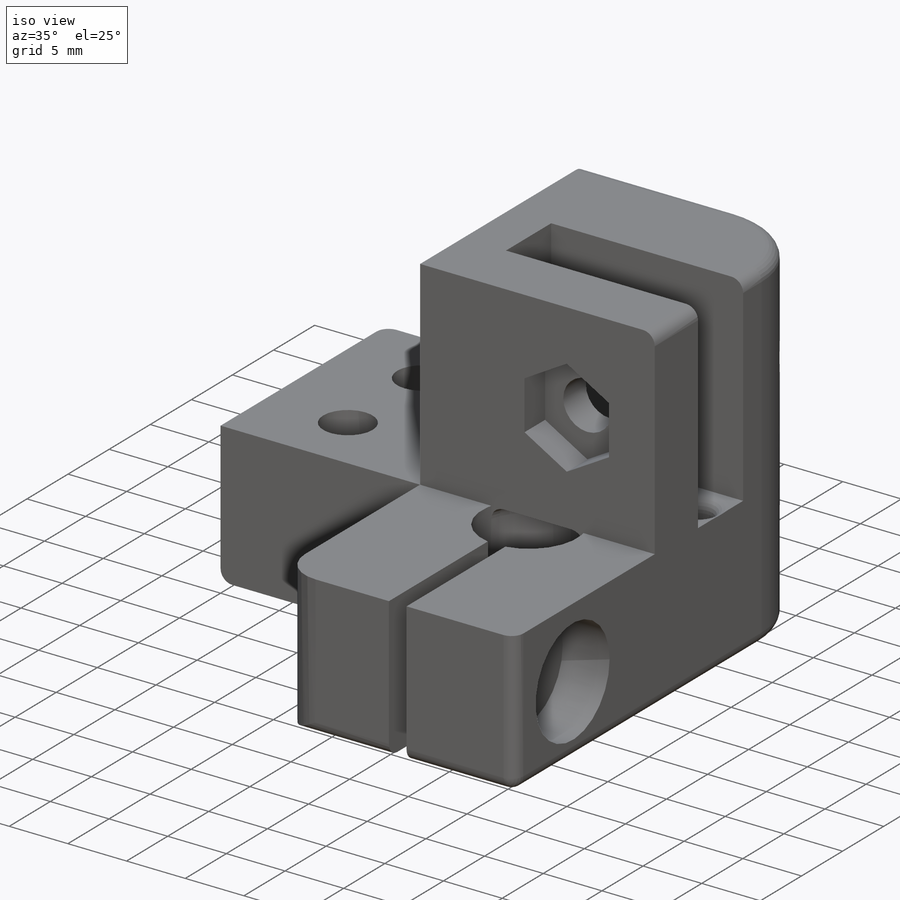
[diagram: iso view]
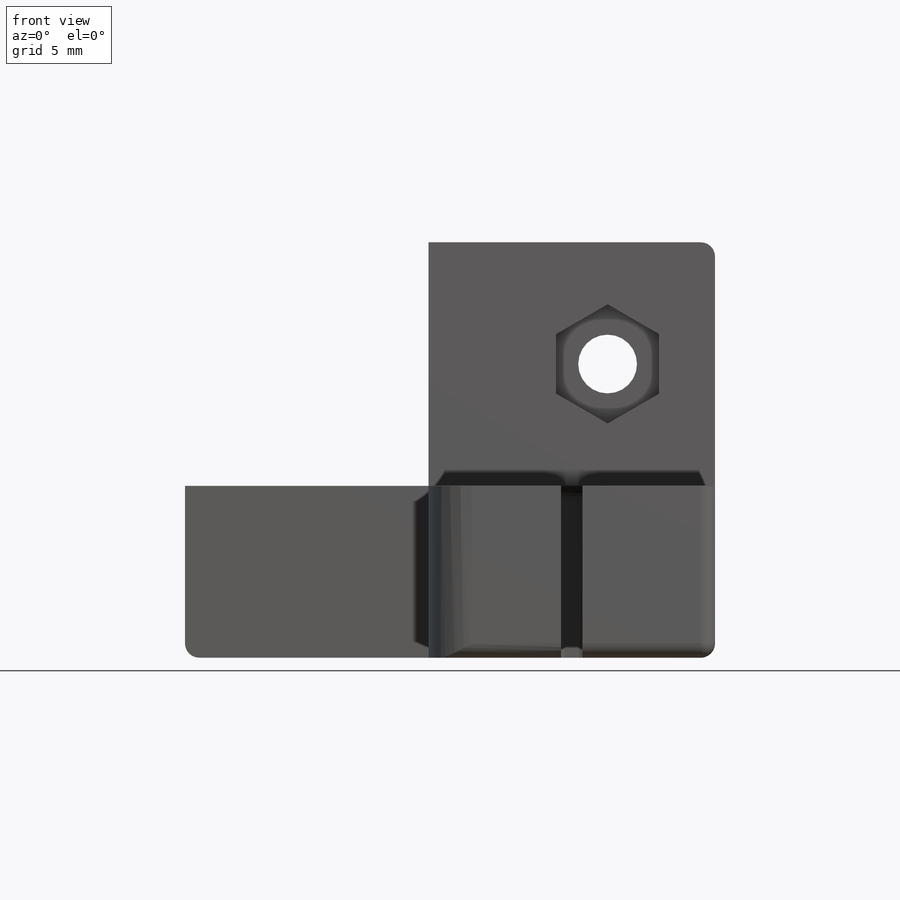
[diagram: front view]
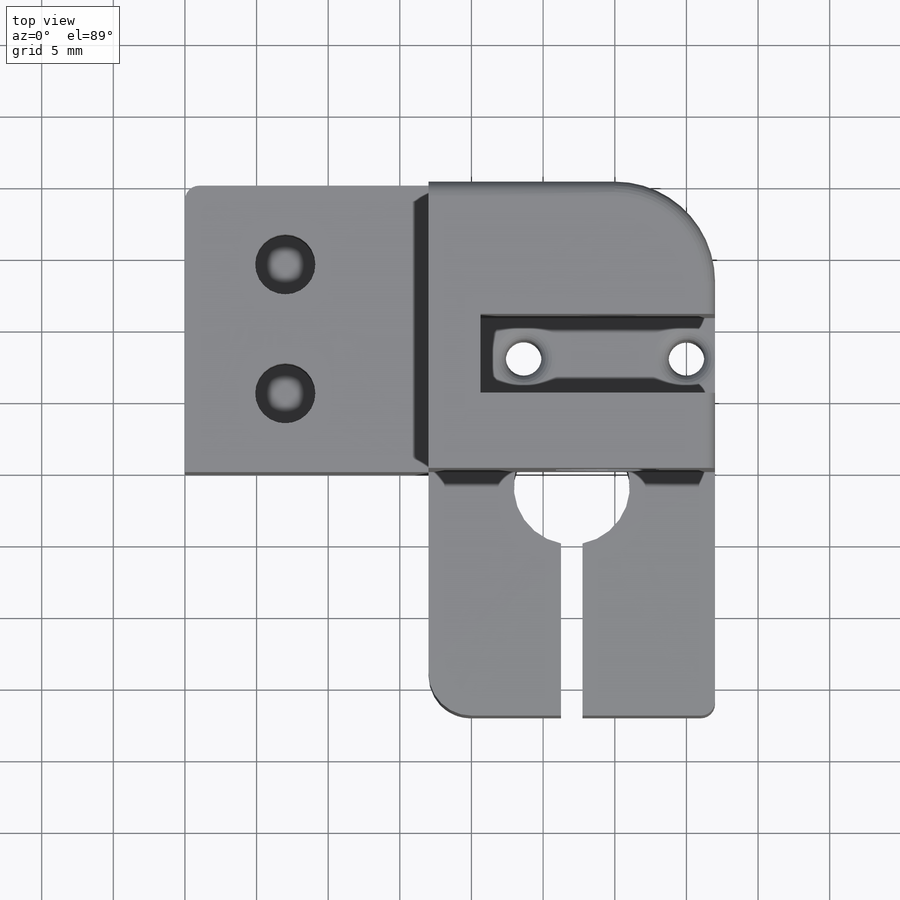
[diagram: top view]
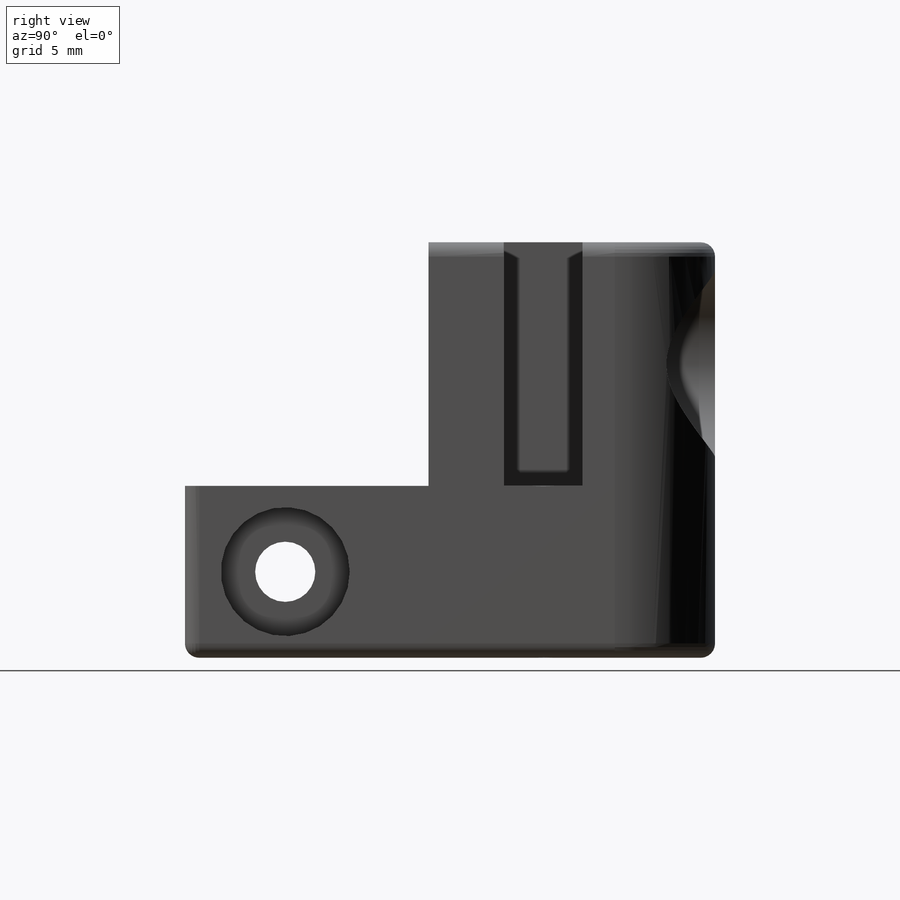
[diagram: right view]
SOLIDWORKS PART (.sldprt)
format: sldprt  version: not decoded by parser v0  size: 817,152 bytes
history: native  units: mm
features: sketch x26, cut_extrude x17, fillet x13, extrude x8, chamfer x3, material x1 (+11 scaffold rows collapsed)
feature tree (79):
  scaffold x11  (default folders/planes/origin — collapsed)
  material  "Material <not specified>"
  sketch  "Sketch1"  dims[D1=37.0mm D2=29.0mm]
  extrude  "Boss-Extrude1"  Depth=37mm
  sketch  "Sketch2"  dims[c1.D1=20.0mm c1.D2=20.0mm c2.D1=17.0mm c2.D2=17.0mm]
  cut_extrude  "Cut-Extrude2"  Depth=17mm
  sketch  "Sketch3"  dims[D1=17.0mm D2=17.0mm]
  cut_extrude  "Cut-Extrude3"  [1 undecoded]
  sketch  "Sketch4"  dims[c1.D1=8.1mm c1.D7=2.5mm c1.D8=2.5mm c1.D11=4.2mm c1.D2=10.0mm c1.D3=1.5mm c1.D4=0.75mm c1.D5=8.0mm c1.D6=9.0mm c1.D9=2.0mm c1.D10=11.36mm c1.D12=10.0mm c1.D13=5.5mm c1.D14=5.0mm c1.D15=10.0mm c2.D14=9.0mm c2.D15=6.0mm]
  cut_extrude  "Cut-Extrude4"  Depth=12mm
  sketch  "Sketch5"  dims[D1=5.5mm D2=5.25mm D3=3.0mm]
  cut_extrude  "Cut-Extrude5"  Depth=17mm
  sketch  "Sketch7"  dims[D1=4.1mm D2=7.5mm D3=8.5mm]
  cut_extrude  "Cut-Extrude6"  [1 undecoded]
  sketch  "Sketch8"  dims[c1.D1=~9.102495mm c1.D2=~5.255328mm c2.D1=7.2mm]
  cut_extrude  "Cut-Extrude7"  Depth=2.5mm
  sketch  "Sketch9"  dims[D3=9.0mm D1=10.0mm D2=6.0mm]
  cut_extrude  "Cut-Extrude8"  Depth=4mm
  sketch  "Sketch13"  dims[D1=9.0mm D2=9.0mm]
  cut_extrude  "Cut-Extrude10"  Depth=5mm
  sketch  "Sketch14"
  extrude  "Boss-Extrude3"  Depth=0.2mm
  sketch  "Sketch19"  dims[D1=13.0mm]
  cut_extrude  "Cut-Extrude15"  Depth=4mm
  sketch  "Sketch20"  dims[D1=6.8mm D2=6.6mm]
  extrude  "Boss-Extrude4"  Depth=0.8mm
  sketch  "Sketch21"  dims[D1=6.8mm]
  extrude  "Boss-Extrude5"  Depth=0.8mm
  sketch  "Sketch22"  dims[D1=6.8mm D2=6.6mm]
  extrude  "Boss-Extrude6"  Depth=0.8mm
  fillet  "Fillet15"  Radius=1mm
  fillet  "Fillet18"  Radius=1mm
  sketch  "Sketch23"
  cut_extrude  "Cut-Extrude16"  [1 undecoded]
  sketch  "Sketch25"  dims[D1=6.8mm D2=6.6mm]
  extrude  "Boss-Extrude7"  Depth=0.8mm
  sketch  "Sketch26"  dims[D1=6.8mm]
  extrude  "Boss-Extrude8"  Depth=0.8mm
  sketch  "Sketch27"  dims[D1=6.8mm]
  extrude  "Boss-Extrude9"  Depth=0.8mm
  chamfer  "Chamfer1"  Distance=0.8mm Angle=45deg
  fillet  "Fillet21"  Radius=1mm
  fillet  "Fillet24"  Radius=1mm
  fillet  "Fillet26"  Radius=7mm
  sketch  "Sketch29"  dims[D1=4.2mm]
  cut_extrude  "Cut-Extrude19"  [1 undecoded]
  fillet  "Fillet43"  Radius=3mm
  sketch  "Sketch35"  dims[D1=2.1mm D2=5.0mm D3=10.0mm D4=6.5mm]
  cut_extrude  "Cut-Extrude23"  Depth=16mm
  sketch  "Sketch36"  dims[c1.D1=4.1mm c1.D2=4.1mm c1.D3=2.0mm c1.D4=6.5mm c1.D5=7.95mm c1.D6=8.5mm c2.D5=7.95mm]
  cut_extrude  "Cut-Extrude24"  Depth=8mm
  chamfer  "Chamfer2"  Distance=1.7mm Angle=45deg
  sketch  "Sketch37"  dims[c1.D1=13.0mm c1.D2=6.75mm c1.D3=~7.407585mm c1.D4=13.0mm c2.D3=10.0mm]
  cut_extrude  "Cut-Extrude25"  Depth=7.5mm
  chamfer  "Chamfer3"  Distance=1mm Angle=45deg
  sketch  "Sketch28"  dims[c1.D1=22.0mm c1.D2=15.0mm c1.D3=20.0mm c2.D2=16.0mm]
  fillet  "Fillet36"  Radius=2mm
  fillet  "Fillet39"  Radius=0.9mm
  fillet  "Fillet40"  Radius=0.9mm
  fillet  "Fillet41"  Radius=0.9mm
  sketch  "Sketch31"
  cut_extrude  "Cut-Extrude20"  Depth=4mm
  sketch  "Sketch32"  dims[D1=2.1mm D2=6.5mm D3=10.0mm D4=5.0mm]
  cut_extrude  "Cut-Extrude21"  Depth=15mm
  sketch  "Sketch33"  dims[D1=2.0mm D2=4.1mm D3=4.1mm D4=2.4mm D5=7.95mm D6=3.5mm]
  cut_extrude  "Cut-Extrude22"  Depth=8mm
  fillet  "Fillet14"  Radius=4mm
  fillet  "Fillet17"  Radius=4mm
  fillet  "Fillet6"  Radius=1mm
decode coverage: 60 of 67 modeling features carry decoded parameters
note: ~ marks probable driven/reference dimensions
note: 4 parameter values undecoded
summary: no parameter record found for 4 features
note: suppression state not decoded; provenance and decode notes live in map.json
